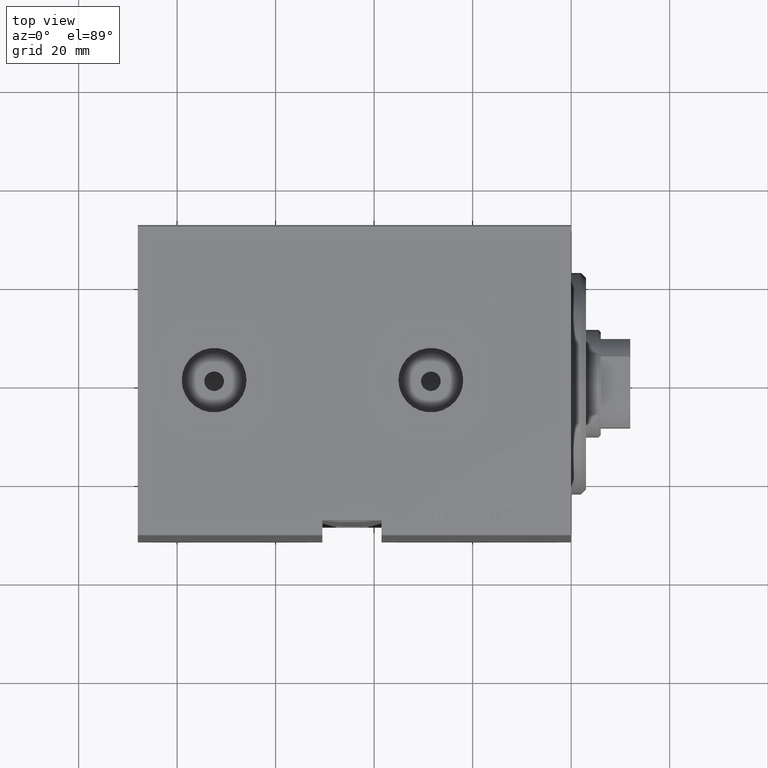
[diagram: clean part render]
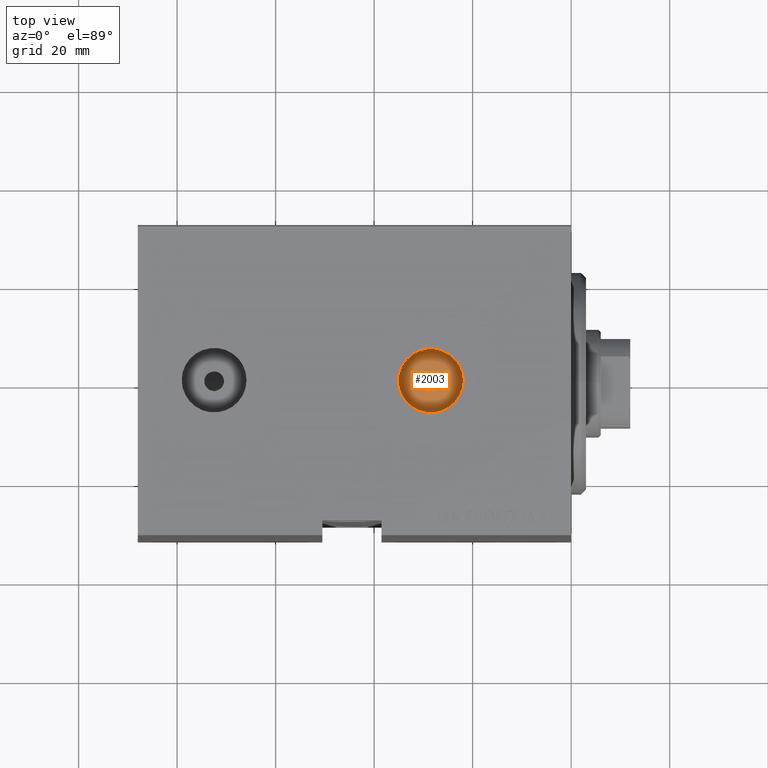
[diagram: same view with one face highlighted and labeled with its STEP entity id]
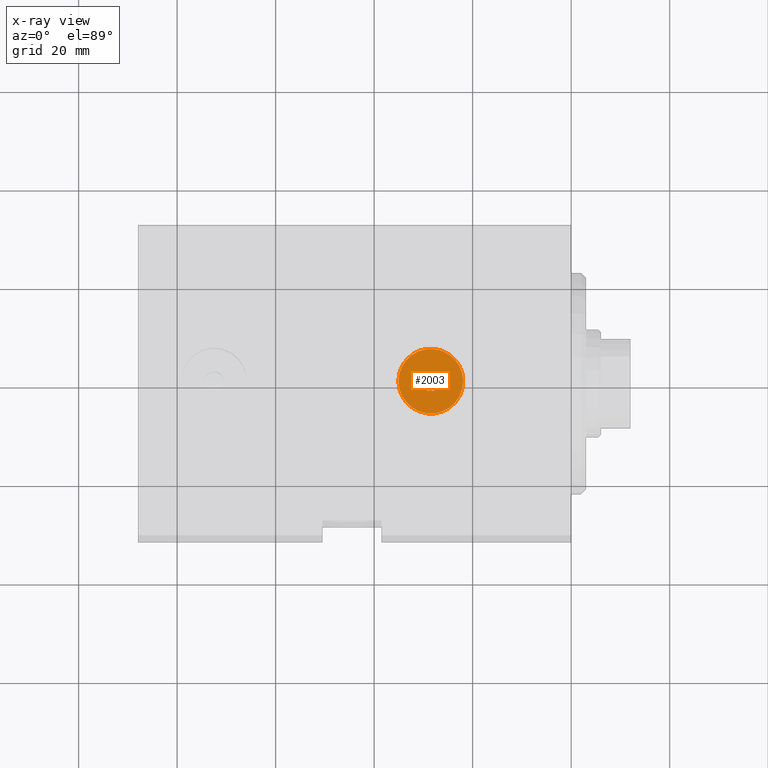
[diagram: x-ray of the same camera — body ghosted, the highlighted face saturated]
A machine part, top view. The second image highlights one B-rep face of the part: STEP entity #2003.
The next image is the same camera in x-ray: the body ghosted, the highlighted face saturated — about 0% of this face is hidden behind the body in this view.
In plain terms, the highlighted planar face has unit normal (0, 0, 1).
Its self-contained STEP definition (entity closure, byte-faithful):
#778 = DIRECTION ( 'NONE',  ( 0.000000000000000000, 0.000000000000000000, 1.000000000000000000 ) ) ;
#1497 = EDGE_CURVE ( 'NONE', #4495, #1963, #21270, .T. ) ;
#1605 = FACE_BOUND ( 'NONE', #17435, .T. ) ;
#1787 = CIRCLE ( 'NONE', #8866, 1.999999999999998224 ) ;
#1963 = VERTEX_POINT ( 'NONE', #28302 ) ;
#2003 = ADVANCED_FACE ( 'NONE', ( #1605, #15176 ), #35226, .T. ) ;
#3683 = DIRECTION ( 'NONE',  ( 1.000000000000000000, 0.000000000000000000, 0.000000000000000000 ) ) ;
#4495 = VERTEX_POINT ( 'NONE', #27827 ) ;
#5822 = CIRCLE ( 'NONE', #17165, 6.579999999999999183 ) ;
#5842 = DIRECTION ( 'NONE',  ( 1.000000000000000000, 0.000000000000000000, 0.000000000000000000 ) ) ;
#8842 = CARTESIAN_POINT ( 'NONE',  ( 28.50000000000000000, -9.361999711620863359E-15, 29.23999999999999488 ) ) ;
#8866 = AXIS2_PLACEMENT_3D ( 'NONE', #12078, #16286, #5842 ) ;
#11948 = DIRECTION ( 'NONE',  ( 1.000000000000000000, 0.000000000000000000, 0.000000000000000000 ) ) ;
#12078 = CARTESIAN_POINT ( 'NONE',  ( 28.50000000000000000, -9.361999711620863359E-15, 29.23999999999999488 ) ) ;
#12329 = ORIENTED_EDGE ( 'NONE', *, *, #41042, .T. ) ;
#12347 = EDGE_CURVE ( 'NONE', #27295, #35977, #5822, .T. ) ;
#15176 = FACE_OUTER_BOUND ( 'NONE', #22477, .T. ) ;
#15940 = ORIENTED_EDGE ( 'NONE', *, *, #12347, .T. ) ;
#16286 = DIRECTION ( 'NONE',  ( 0.000000000000000000, 0.000000000000000000, 1.000000000000000000 ) ) ;
#16370 = CIRCLE ( 'NONE', #27728, 6.579999999999999183 ) ;
#17165 = AXIS2_PLACEMENT_3D ( 'NONE', #24032, #43682, #30295 ) ;
#17435 = EDGE_LOOP ( 'NONE', ( #35025, #28588 ) ) ;
#18439 = CARTESIAN_POINT ( 'NONE',  ( 21.92000000000000171, -8.556182117781905894E-15, 29.23999999999999488 ) ) ;
#19810 = DIRECTION ( 'NONE',  ( 0.000000000000000000, 0.000000000000000000, 1.000000000000000000 ) ) ;
#21224 = CARTESIAN_POINT ( 'NONE',  ( 28.50000000000000000, -9.361999711620863359E-15, 29.23999999999999488 ) ) ;
#21270 = CIRCLE ( 'NONE', #22705, 1.999999999999998224 ) ;
#22477 = EDGE_LOOP ( 'NONE', ( #12329, #15940 ) ) ;
#22705 = AXIS2_PLACEMENT_3D ( 'NONE', #21224, #778, #3683 ) ;
#24032 = CARTESIAN_POINT ( 'NONE',  ( 28.50000000000000000, -9.361999711620863359E-15, 29.23999999999999488 ) ) ;
#25106 = EDGE_CURVE ( 'NONE', #1963, #4495, #1787, .T. ) ;
#27295 = VERTEX_POINT ( 'NONE', #18439 ) ;
#27728 = AXIS2_PLACEMENT_3D ( 'NONE', #8842, #32223, #11948 ) ;
#27827 = CARTESIAN_POINT ( 'NONE',  ( 26.50000000000000355, -9.117070351791393062E-15, 29.23999999999999488 ) ) ;
#28302 = CARTESIAN_POINT ( 'NONE',  ( 30.50000000000000000, -9.361999711620863359E-15, 29.23999999999999488 ) ) ;
#28524 = CARTESIAN_POINT ( 'NONE',  ( 28.50000000000000000, -9.361999711620863359E-15, 29.23999999999999488 ) ) ;
#28588 = ORIENTED_EDGE ( 'NONE', *, *, #1497, .F. ) ;
#30295 = DIRECTION ( 'NONE',  ( 1.000000000000000000, 0.000000000000000000, 0.000000000000000000 ) ) ;
#32223 = DIRECTION ( 'NONE',  ( 0.000000000000000000, 0.000000000000000000, 1.000000000000000000 ) ) ;
#34409 = CARTESIAN_POINT ( 'NONE',  ( 35.07999999999999829, -9.361999711620863359E-15, 29.23999999999999488 ) ) ;
#35025 = ORIENTED_EDGE ( 'NONE', *, *, #25106, .F. ) ;
#35226 = PLANE ( 'NONE',  #36137 ) ;
#35977 = VERTEX_POINT ( 'NONE', #34409 ) ;
#36137 = AXIS2_PLACEMENT_3D ( 'NONE', #28524, #19810, #43451 ) ;
#41042 = EDGE_CURVE ( 'NONE', #35977, #27295, #16370, .T. ) ;
#43451 = DIRECTION ( 'NONE',  ( 1.000000000000000000, 0.000000000000000000, -0.000000000000000000 ) ) ;
#43682 = DIRECTION ( 'NONE',  ( 0.000000000000000000, 0.000000000000000000, 1.000000000000000000 ) ) ;